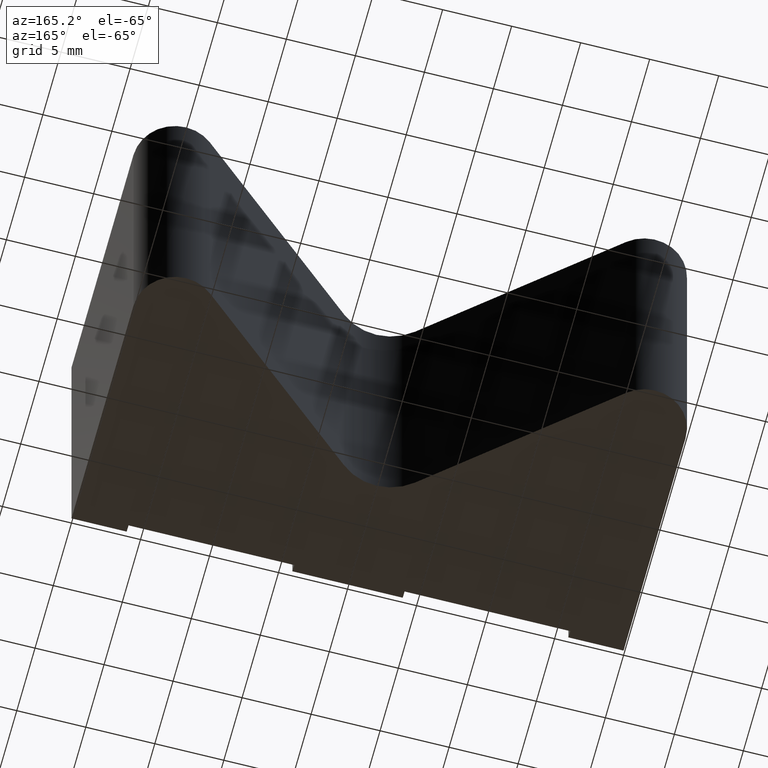
[diagram: clean part render]
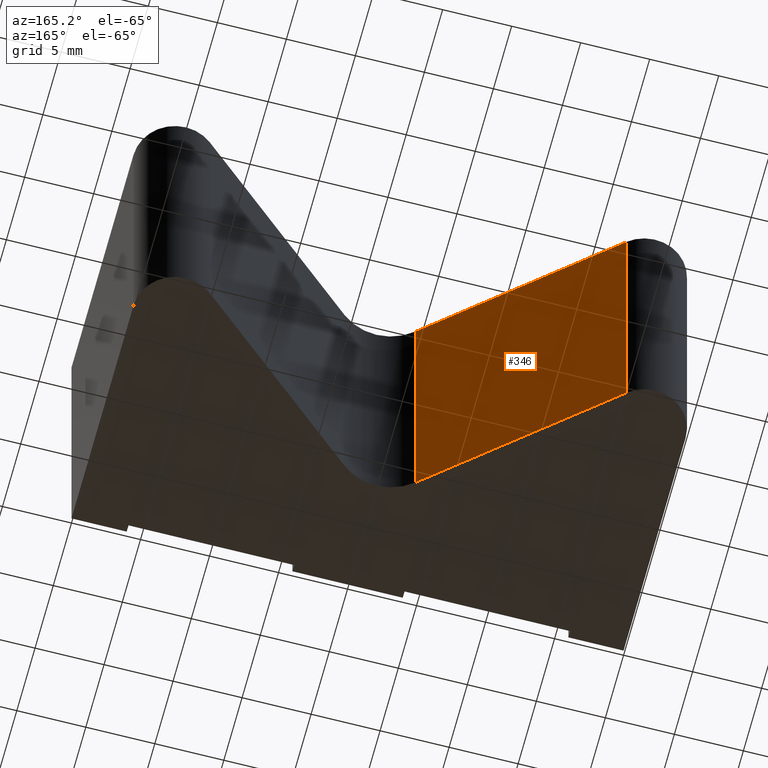
[diagram: same view with one face highlighted and labeled with its STEP entity id]
A machine part, auxiliary view. The second image highlights one B-rep face of the part: STEP entity #346.
In plain terms, the highlighted planar face has unit normal (0.6418, 0.7669, 0).
Its self-contained STEP definition (entity closure, byte-faithful):
#29=FACE_OUTER_BOUND('',#47,.T.);
#47=EDGE_LOOP('',(#280,#281,#282,#283));
#71=LINE('',#520,#113);
#92=LINE('',#567,#134);
#93=LINE('',#570,#135);
#94=LINE('',#571,#136);
#113=VECTOR('',#417,10.);
#134=VECTOR('',#464,10.);
#135=VECTOR('',#467,10.);
#136=VECTOR('',#468,10.);
#156=VERTEX_POINT('',#517);
#157=VERTEX_POINT('',#519);
#170=VERTEX_POINT('',#565);
#171=VERTEX_POINT('',#569);
#188=EDGE_CURVE('',#157,#156,#71,.T.);
#212=EDGE_CURVE('',#170,#156,#92,.T.);
#213=EDGE_CURVE('',#170,#171,#93,.T.);
#214=EDGE_CURVE('',#171,#157,#94,.T.);
#280=ORIENTED_EDGE('',*,*,#213,.T.);
#281=ORIENTED_EDGE('',*,*,#214,.T.);
#282=ORIENTED_EDGE('',*,*,#188,.T.);
#283=ORIENTED_EDGE('',*,*,#212,.F.);
#330=PLANE('',#391);
#346=ADVANCED_FACE('',(#29),#330,.T.);
#391=AXIS2_PLACEMENT_3D('',#568,#465,#466);
#417=DIRECTION('',(-0.766854452082493,0.641821041507101,0.));
#464=DIRECTION('',(0.,0.,-1.));
#465=DIRECTION('center_axis',(0.641821041507101,0.766854452082493,0.));
#466=DIRECTION('ref_axis',(0.,0.,-1.));
#467=DIRECTION('',(0.766854452082493,-0.641821041507101,0.));
#468=DIRECTION('',(0.,0.,-1.));
#517=CARTESIAN_POINT('',(-15.0745368754787,19.3005633562475,-12.5));
#519=CARTESIAN_POINT('',(-2.5672841660284,8.83258219167003,-12.5));
#520=CARTESIAN_POINT('',(-15.0745368754787,19.3005633562475,-12.5));
#565=CARTESIAN_POINT('',(-15.0745368754787,19.3005633562475,12.5));
#567=CARTESIAN_POINT('',(-15.0745368754787,19.3005633562475,0.));
#568=CARTESIAN_POINT('Origin',(-15.0745368754787,19.3005633562475,0.));
#569=CARTESIAN_POINT('',(-2.5672841660284,8.83258219167003,12.5));
#570=CARTESIAN_POINT('',(-15.0745368754787,19.3005633562475,12.5));
#571=CARTESIAN_POINT('',(-2.5672841660284,8.83258219167003,0.));